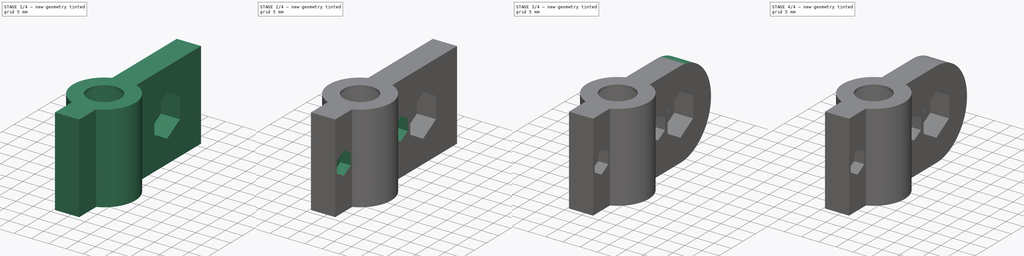
[diagram: build sequence overview — one tinted view per stage of 4, left to right]
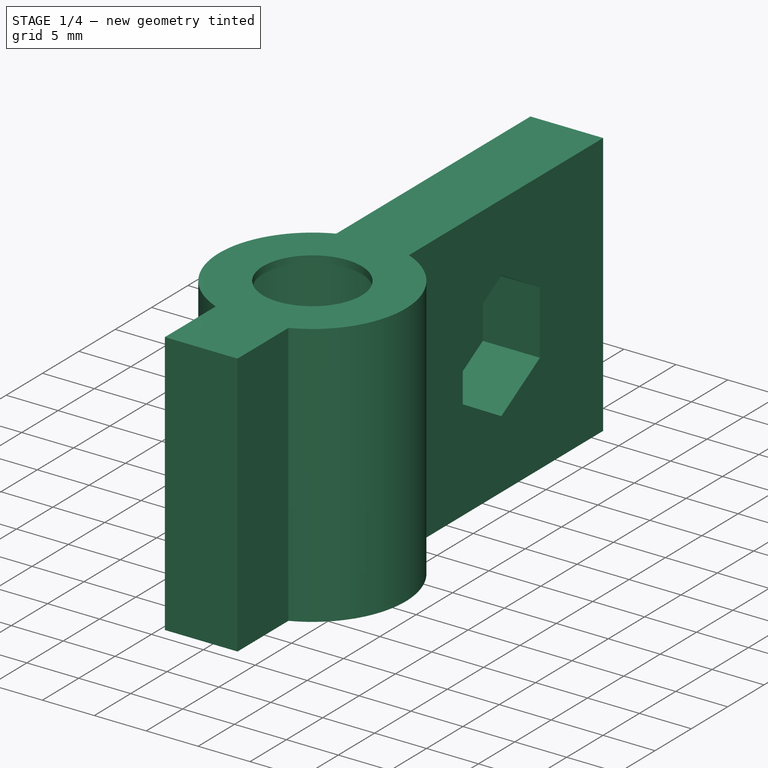
[diagram: stage 1 of 4 — iso view after this stage's code; geometry added in this stage tinted green]
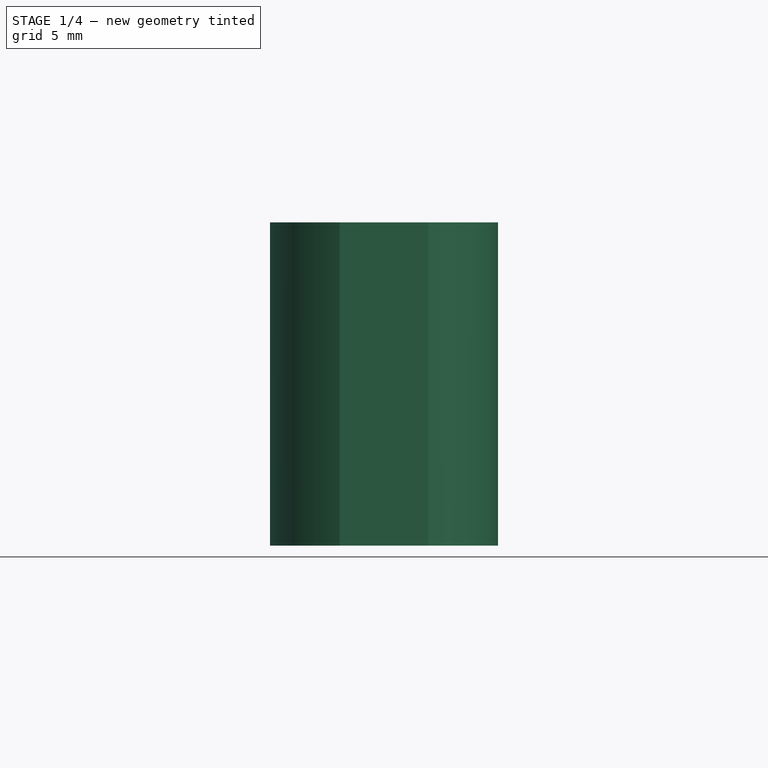
[diagram: stage 1 of 4 — front view after this stage's code; geometry added in this stage tinted green]
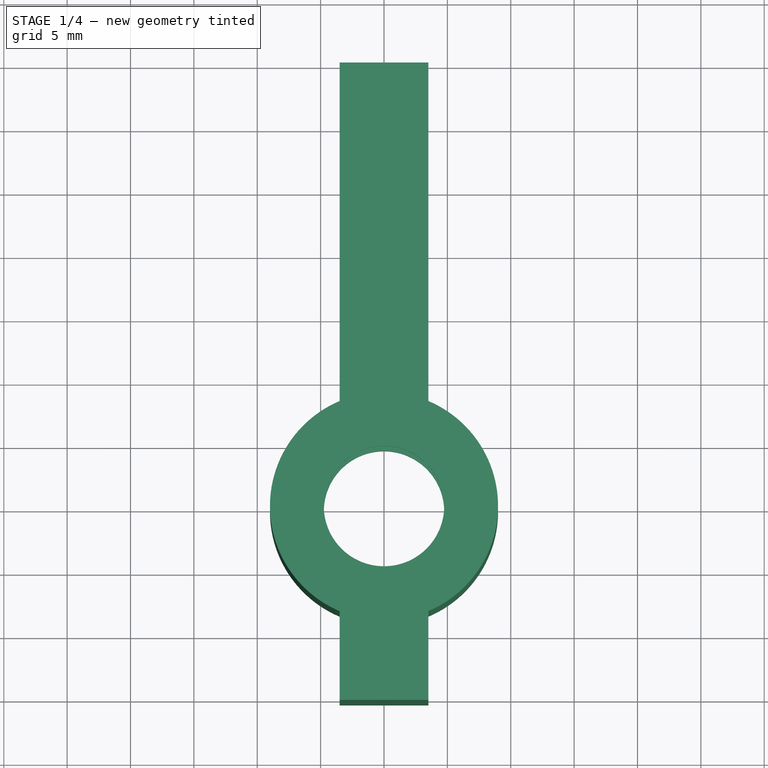
[diagram: stage 1 of 4 — top view after this stage's code; geometry added in this stage tinted green]
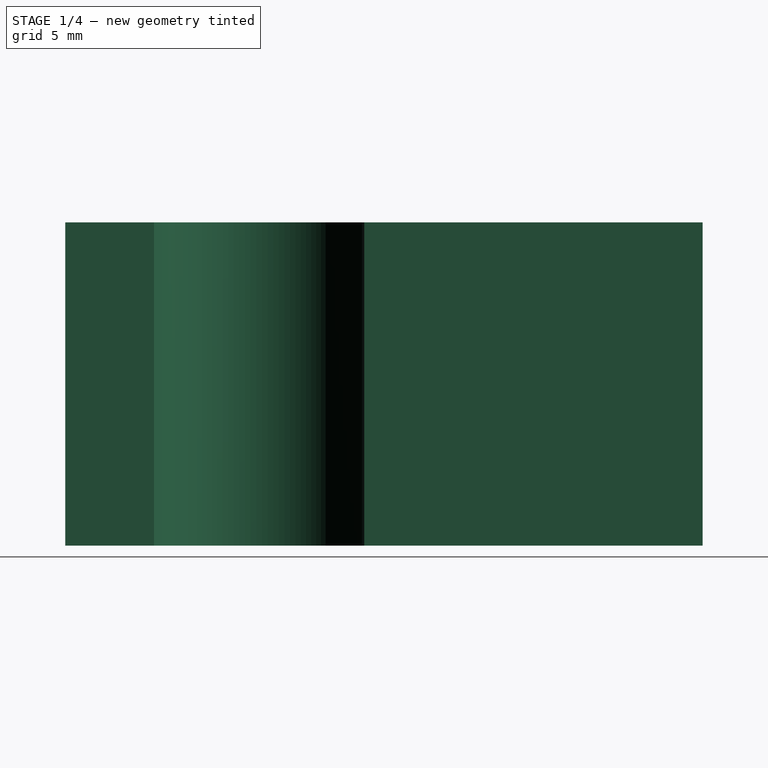
[diagram: stage 1 of 4 — right view after this stage's code; geometry added in this stage tinted green]
FCSTD DOCUMENT  (FreeCAD 0.18R16146 (Git))
Label: stepper-trolley
License: All rights reserved
LicenseURL: http://en.wikipedia.org/wiki/All_rights_reserved
objects: Sketcher::SketchObject×10, PartDesign::Pocket×9, PartDesign::Body×3, PartDesign::FeatureBase×2, PartDesign::Pad×1
note: 35 computed .brp shape members not serialized (recipe doc carries the construction recipe); baked Part::Feature solids carry a one-line shape summary decoded from their .brp

FEATURE [Sketcher::SketchObject] Sketch
  MapMode = 5
  Support = -> [XY_Plane]
  sketch-geometry (9):
    g0: ArcOfCircle CenterX=0 CenterY=0 CenterZ=0 NormalX=0 NormalY=0 NormalZ=1 AngleXU=0 Radius=9 StartAngle=1.97022 EndAngle=4.31296
    g1: LineSegment StartX=-3.5 StartY=35 StartZ=0 EndX=-3.5 EndY=8.29156 EndZ=0
    g2: LineSegment StartX=3.5 StartY=35 StartZ=0 EndX=3.5 EndY=8.29156 EndZ=0
    g3: LineSegment StartX=-3.5 StartY=35 StartZ=0 EndX=3.5 EndY=35 EndZ=0
    g4: Circle CenterX=0 CenterY=0 CenterZ=0 NormalX=0 NormalY=0 NormalZ=1 AngleXU=0 Radius=4.75
    g5: LineSegment StartX=-3.5 StartY=-8.29156 StartZ=0 EndX=-3.5 EndY=-15.2916 EndZ=0
    g6: LineSegment StartX=-3.5 StartY=-15.2916 StartZ=0 EndX=3.5 EndY=-15.2916 EndZ=0
    g7: LineSegment StartX=3.5 StartY=-15.2916 StartZ=0 EndX=3.5 EndY=-8.29156 EndZ=0
    g8: ArcOfCircle CenterX=0 CenterY=0 CenterZ=0 NormalX=0 NormalY=0 NormalZ=1 AngleXU=0 Radius=9 StartAngle=5.11181 EndAngle=7.45456
  constraints (26):
    c: Coincident(g0,g-1)
    c: Diameter(g0) = 18
    c: Vertical(g1)
    c: Vertical(g2)
    c: Coincident(g0,g1)
    c: Coincident(g8,g2)
    c: DistanceY(g0,g8) = 0
    c: DistanceY(g1,g2) = 0
    c: DistanceX(g1,g2) = 7
    c: Coincident(g3,g1)
    c: Coincident(g3,g2)
    c: DistanceY(g0,g1) = 35
    c: Coincident(g4,g0)
    c: Diameter(g4) = 9.5
    c: Coincident(g6,g5)
    c: Horizontal(g6)
    c: Coincident(g7,g6)
    c: Vertical(g7)
    c: Vertical(g5)
    c: Equal(g0,g8)
    c: Coincident(g0,g5)
    c: Coincident(g8,g7)
    c: Coincident(g0,g8)
    c: DistanceX(g0,g0) = 0
    c: DistanceY(g7,g0) = 0
    c: DistanceY(g5,g5) = 7
FEATURE [PartDesign::Pad] Pad
  Length = 25.5
  Length2 = 100
  Profile = -> Sketch
  Type = 0
FEATURE [Sketcher::SketchObject] Sketch001
  AttachmentOffset = pos=(0,0,0.6875) rot=(0,0,1;0rad)
  MapMode = 5
  Placement = pos=(0,0,0.6875) rot=(0,0,1;0rad)
  Support = -> [XY_Plane]
  sketch-geometry (1):
    g0: Circle CenterX=0 CenterY=0 CenterZ=0 NormalX=0 NormalY=0 NormalZ=1 AngleXU=0 Radius=7.75
  constraints (2):
    c: Coincident(g0,g-1)
    c: Diameter(g0) = 15.5
FEATURE [PartDesign::Pocket] Pocket
  BaseFeature = -> Pad
  Length = 24.125
  Length2 = 100
  Profile = -> Sketch001
  Reversed = true
  Type = 0
FEATURE [Sketcher::SketchObject] Sketch002
  MapMode = 5
  Placement = pos=(3.5,0,0) rot=(0.57735,0.57735,0.57735;2.0944rad)
  Support = -> [Pocket]
  sketch-geometry (7):
    g0: LineSegment StartX=21 StartY=18.875 StartZ=0 EndX=15.6956 EndY=15.8125 EndZ=0
    g1: LineSegment StartX=15.6956 StartY=15.8125 StartZ=0 EndX=15.6956 EndY=9.6875 EndZ=0
    g2: LineSegment StartX=15.6956 StartY=9.6875 StartZ=0 EndX=21 EndY=6.625 EndZ=0
    g3: LineSegment StartX=21 StartY=6.625 StartZ=0 EndX=26.3044 EndY=9.6875 EndZ=0
    g4: LineSegment StartX=26.3044 StartY=9.6875 StartZ=0 EndX=26.3044 EndY=15.8125 EndZ=0
    g5: LineSegment StartX=26.3044 StartY=15.8125 StartZ=0 EndX=21 EndY=18.875 EndZ=0
    g6: Circle [constr] CenterX=21 CenterY=12.75 CenterZ=0 NormalX=0 NormalY=0 NormalZ=1 AngleXU=0 Radius=6.125
  constraints (17):
    c: Coincident(g0,g1)
    c: Coincident(g1,g2)
    c: Coincident(g2,g3)
    c: Coincident(g3,g4)
    c: Coincident(g4,g5)
    c: Coincident(g5,g0)
    c: Equal(g0, g1-g5) x5
    c: PointOnObject(g0,g6)
    c: PointOnObject(g1,g6)
    c: PointOnObject(g2,g6)
    c: PointOnObject(g3,g6)
    c: PointOnObject(g4,g6)
    c: PointOnObject(g5,g6)
    c: Vertical(g1)
    c: DistanceY(g-1,g6) = 12.75
    c: Diameter(g6) = 12.25
    c: DistanceX(g-1,g6) = 21
FEATURE [PartDesign::Pocket] Pocket001
  BaseFeature = -> Pocket
  Length = 5.5
  Length2 = 100
  Profile = -> Sketch002
  Type = 0
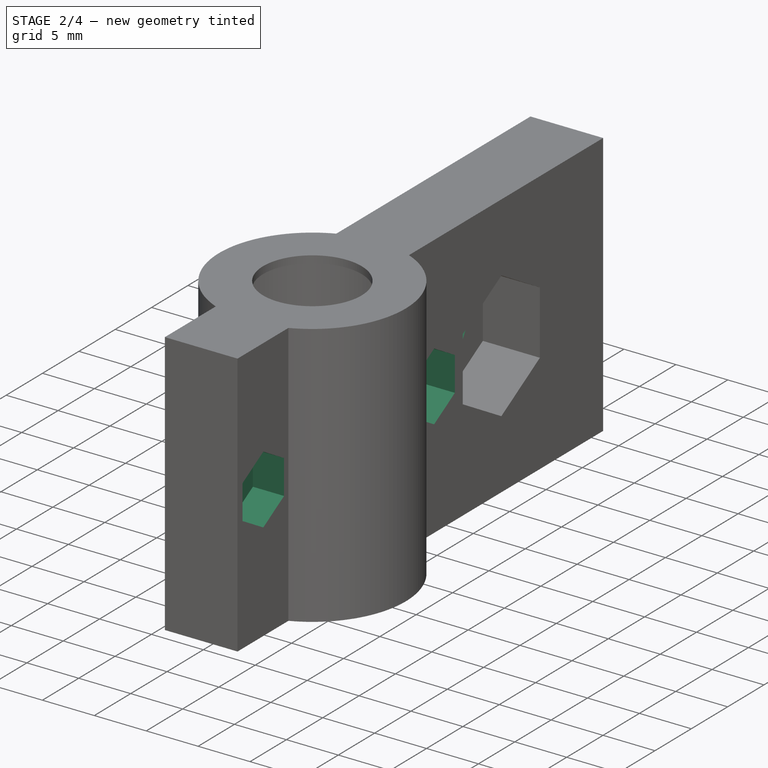
[diagram: stage 2 of 4 — iso view after this stage's code; geometry added in this stage tinted green]
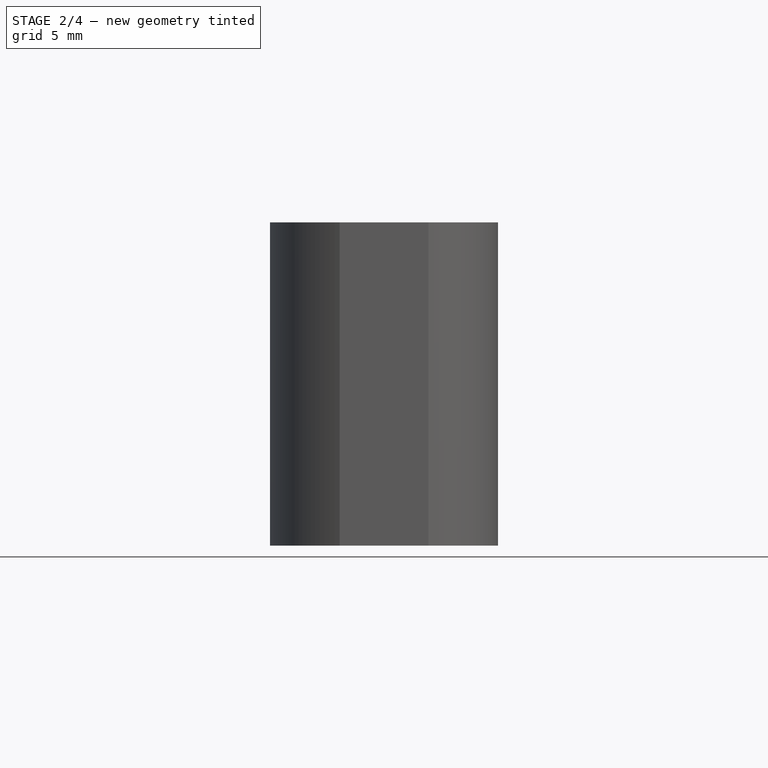
[diagram: stage 2 of 4 — front view after this stage's code; geometry added in this stage tinted green]
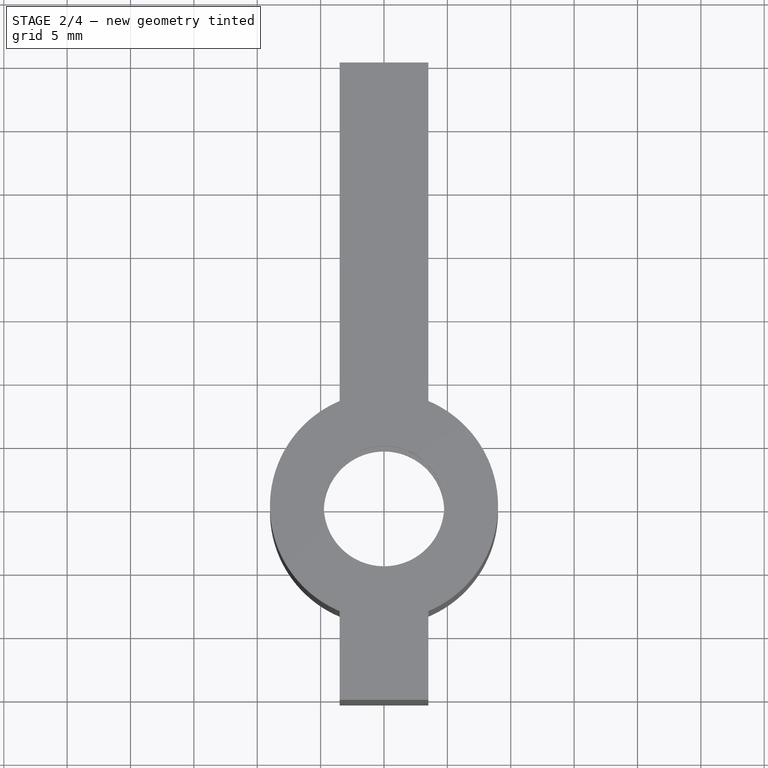
[diagram: stage 2 of 4 — top view after this stage's code; geometry added in this stage tinted green]
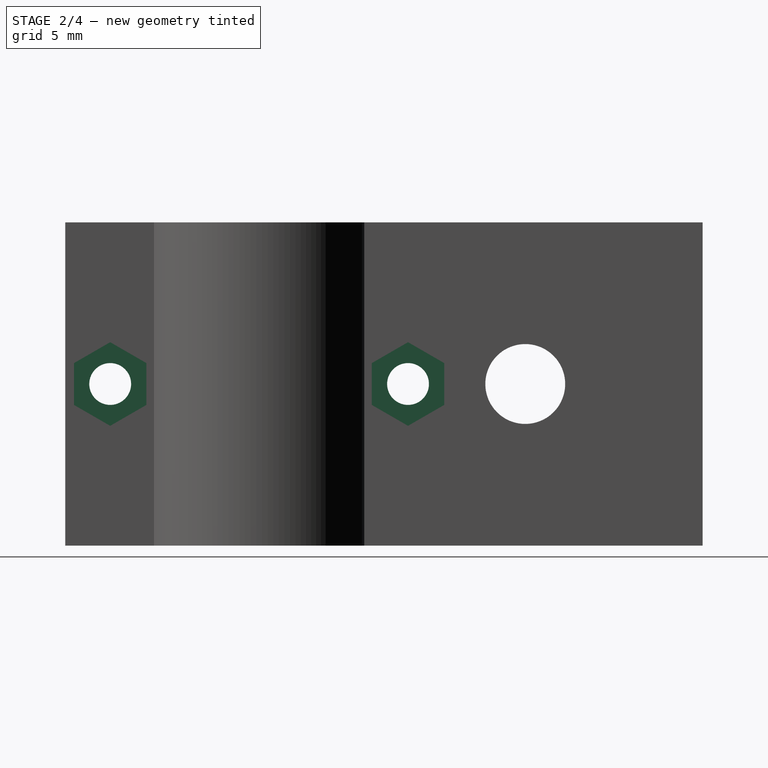
[diagram: stage 2 of 4 — right view after this stage's code; geometry added in this stage tinted green]
FEATURE [Sketcher::SketchObject] Sketch003
  MapMode = 5
  Placement = pos=(0,0,0) rot=(0.57735,0.57735,0.57735;2.0944rad)
  Support = -> [YZ_Plane]
  sketch-geometry (1):
    g0: Circle CenterX=21 CenterY=12.75 CenterZ=0 NormalX=0 NormalY=0 NormalZ=1 AngleXU=0 Radius=3.15
  constraints (3):
    c: Diameter(g0) = 6.3
    c: DistanceX(g-1,g0) = 21
    c: DistanceY(g-1,g0) = 12.75
FEATURE [PartDesign::Pocket] Pocket002
  BaseFeature = -> Pocket001
  Length = 5
  Length2 = 100
  Profile = -> Sketch003
  Type = 1
FEATURE [Sketcher::SketchObject] Sketch006
  AttachmentOffset = pos=(0,0,3.5) rot=(0,0,1;0rad)
  MapMode = 5
  Placement = pos=(3.5,-8e-16,8e-16) rot=(0.57735,0.57735,0.57735;2.0944rad)
  Support = -> [YZ_Plane]
  sketch-geometry (14):
    g0: LineSegment StartX=-8.89212 StartY=11.1 StartZ=0 EndX=-8.89212 EndY=14.4 EndZ=0
    g1: LineSegment StartX=-8.89212 StartY=14.4 StartZ=0 EndX=-11.75 EndY=16.05 EndZ=0
    g2: LineSegment StartX=-11.75 StartY=16.05 StartZ=0 EndX=-14.6079 EndY=14.4 EndZ=0
    g3: LineSegment StartX=-14.6079 StartY=14.4 StartZ=0 EndX=-14.6079 EndY=11.1 EndZ=0
    g4: LineSegment StartX=-14.6079 StartY=11.1 StartZ=0 EndX=-11.75 EndY=9.45 EndZ=0
    g5: LineSegment StartX=-11.75 StartY=9.45 StartZ=0 EndX=-8.89212 EndY=11.1 EndZ=0
    g6: Circle [constr] CenterX=-11.75 CenterY=12.75 CenterZ=0 NormalX=0 NormalY=0 NormalZ=1 AngleXU=0 Radius=3.3
    g7: LineSegment StartX=14.6079 StartY=11.1 StartZ=0 EndX=14.6079 EndY=14.4 EndZ=0
    g8: LineSegment StartX=14.6079 StartY=14.4 StartZ=0 EndX=11.75 EndY=16.05 EndZ=0
    g9: LineSegment StartX=11.75 StartY=16.05 StartZ=0 EndX=8.89212 EndY=14.4 EndZ=0
    g10: LineSegment StartX=8.89212 StartY=14.4 StartZ=0 EndX=8.89212 EndY=11.1 EndZ=0
    g11: LineSegment StartX=8.89212 StartY=11.1 StartZ=0 EndX=11.75 EndY=9.45 EndZ=0
    g12: LineSegment StartX=11.75 StartY=9.45 StartZ=0 EndX=14.6079 EndY=11.1 EndZ=0
    g13: Circle [constr] CenterX=11.75 CenterY=12.75 CenterZ=0 NormalX=0 NormalY=0 NormalZ=1 AngleXU=0 Radius=3.3
  constraints (34):
    c: Coincident(g0,g1)
    c: Coincident(g1,g2)
    c: Coincident(g2,g3)
    c: Coincident(g3,g4)
    c: Coincident(g4,g5)
    c: Coincident(g5,g0)
    c: Equal(g0, g1-g5) x5
    c: PointOnObject(g0,g6)
    c: PointOnObject(g1,g6)
    c: PointOnObject(g2,g6)
    c: PointOnObject(g3,g6)
    c: PointOnObject(g4,g6)
    c: PointOnObject(g5,g6)
    c: Coincident(g7,g8)
    c: Coincident(g8,g9)
    c: Coincident(g9,g10)
    c: Coincident(g10,g11)
    c: Coincident(g11,g12)
    c: Coincident(g12,g7)
    c: Equal(g7, g8-g12) x5
    c: PointOnObject(g7,g13)
    c: PointOnObject(g8,g13)
    c: PointOnObject(g9,g13)
    c: PointOnObject(g10,g13)
    c: PointOnObject(g11,g13)
    c: PointOnObject(g12,g13)
    c: DistanceY(g13,g6) = 0
    c: DistanceX(g6,g-1) = 11.75
    c: DistanceY(g-1,g13) = 12.75
    c: Vertical(g10)
    c: DistanceX(g-1,g13) = 11.75
    c: Diameter(g6) = 6.6
    c: Vertical(g3)
    c: Equal(g13,g6)
FEATURE [PartDesign::Pocket] Pocket003
  BaseFeature = -> Pocket002
  Length = 3
  Length2 = 100
  Profile = -> Sketch006
  Type = 0
FEATURE [Sketcher::SketchObject] Sketch007
  AttachmentOffset = pos=(0,0,-30) rot=(0,0,1;0rad)
  MapMode = 5
  Placement = pos=(-30,6.7e-15,-6.7e-15) rot=(0.57735,0.57735,0.57735;2.0944rad)
  Support = -> [YZ_Plane]
  sketch-geometry (2):
    g0: Circle CenterX=-11.75 CenterY=12.75 CenterZ=0 NormalX=0 NormalY=0 NormalZ=1 AngleXU=0 Radius=1.65
    g1: Circle CenterX=11.75 CenterY=12.75 CenterZ=0 NormalX=0 NormalY=0 NormalZ=1 AngleXU=0 Radius=1.65
  constraints (6):
    c: DistanceY(g1,g0) = 0
    c: DistanceX(g0,g-1) = 11.75
    c: DistanceX(g-1,g1) = 11.75
    c: DistanceY(g-1,g1) = 12.75
    c: Diameter(g0) = 3.3
    c: Equal(g1,g0)
FEATURE [PartDesign::Pocket] Pocket004
  BaseFeature = -> Pocket003
  Length = 5
  Length2 = 100
  Profile = -> Sketch007
  Reversed = true
  Type = 1
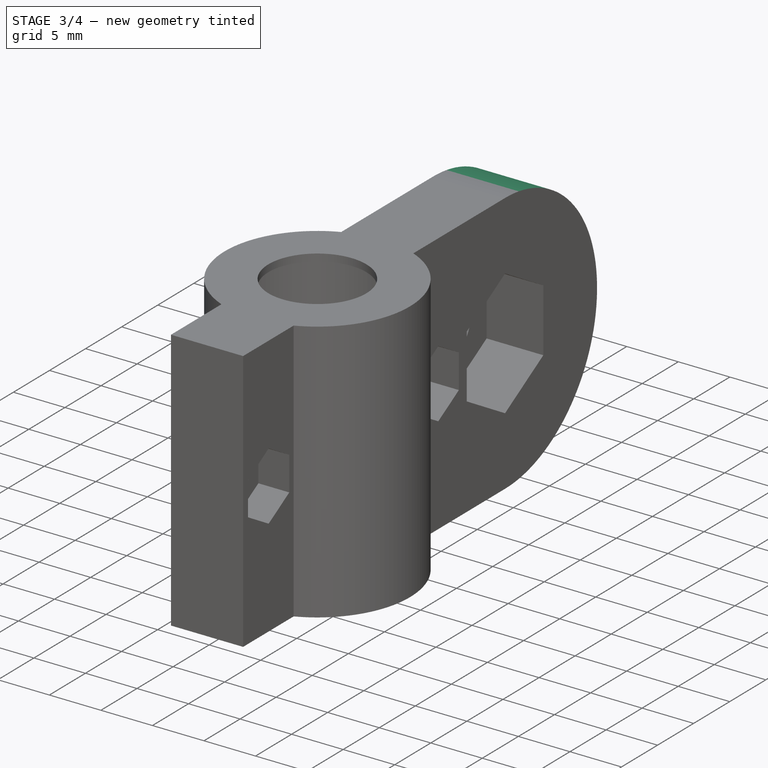
[diagram: stage 3 of 4 — iso view after this stage's code; geometry added in this stage tinted green]
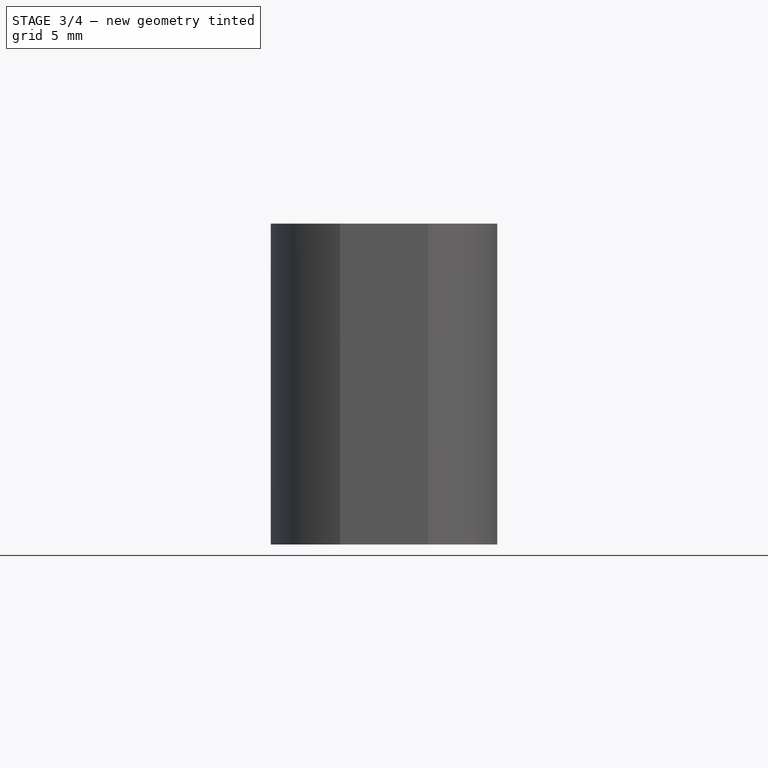
[diagram: stage 3 of 4 — front view after this stage's code; geometry added in this stage tinted green]
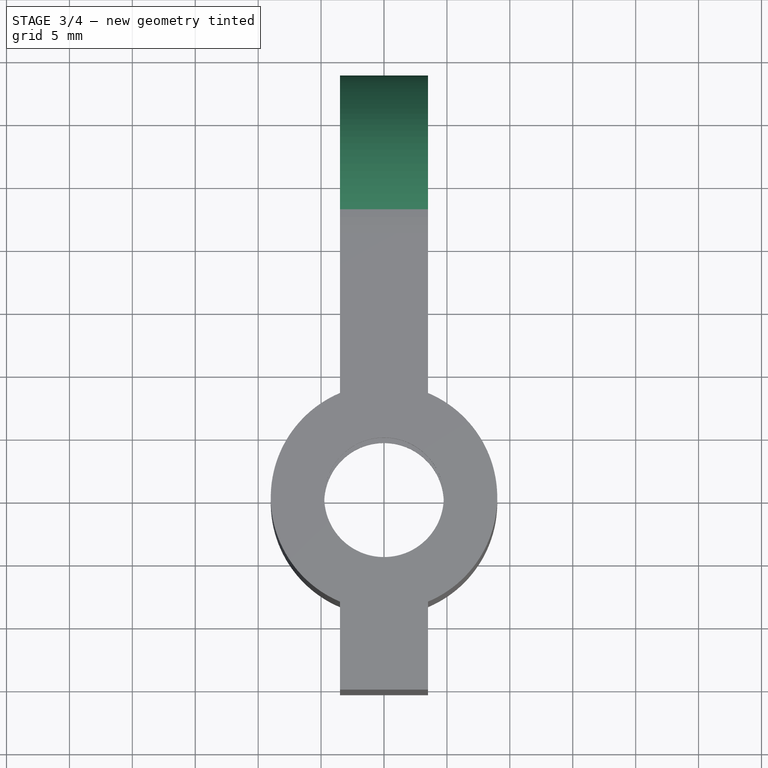
[diagram: stage 3 of 4 — top view after this stage's code; geometry added in this stage tinted green]
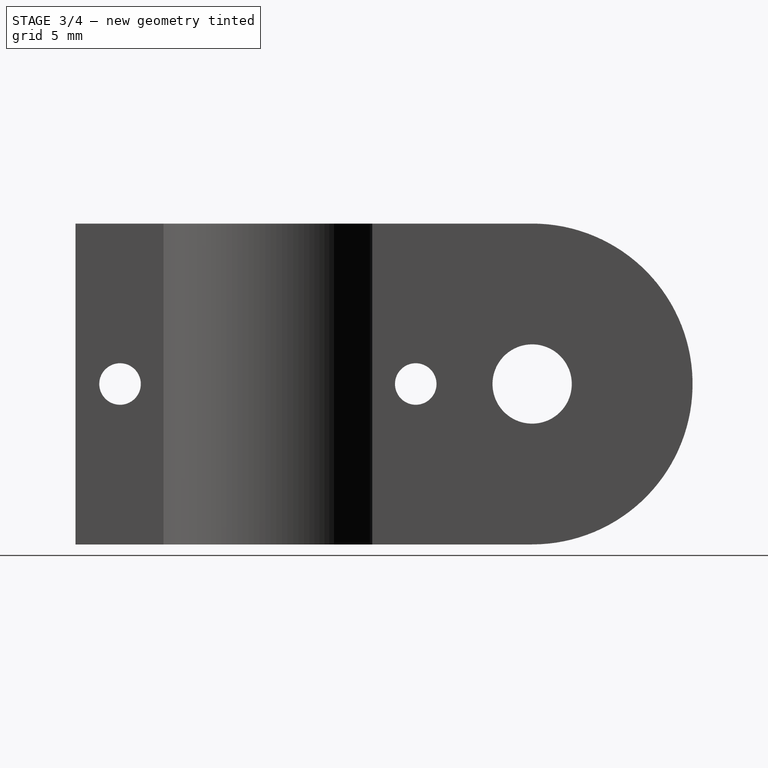
[diagram: stage 3 of 4 — right view after this stage's code; geometry added in this stage tinted green]
FEATURE [Sketcher::SketchObject] Sketch008
  AttachmentOffset = pos=(0,0,-3.5) rot=(0,0,1;0rad)
  MapMode = 5
  Placement = pos=(-3.5,8e-16,-8e-16) rot=(0.57735,0.57735,0.57735;2.0944rad)
  Support = -> [YZ_Plane]
  sketch-geometry (2):
    g0: Circle CenterX=-11.75 CenterY=12.75 CenterZ=0 NormalX=0 NormalY=0 NormalZ=1 AngleXU=0 Radius=3
    g1: Circle CenterX=11.75 CenterY=12.75 CenterZ=0 NormalX=0 NormalY=0 NormalZ=1 AngleXU=0 Radius=3
  constraints (6):
    c: DistanceY(g1,g0) = 0
    c: Equal(g1,g0)
    c: Diameter(g0) = 6
    c: DistanceY(g-1,g0) = 12.75
    c: DistanceX(g0,g-1) = 11.75
    c: DistanceX(g-1,g1) = 11.75
FEATURE [PartDesign::Pocket] Pocket005
  BaseFeature = -> Pocket004
  Length = 3
  Length2 = 100
  Profile = -> Sketch008
  Reversed = true
  Type = 0
FEATURE [Sketcher::SketchObject] Sketch009
  AttachmentOffset = pos=(0,0,50) rot=(0,0,1;0rad)
  MapMode = 5
  Placement = pos=(50,-1.11e-14,1.11e-14) rot=(0.57735,0.57735,0.57735;2.0944rad)
  Support = -> [YZ_Plane]
  sketch-geometry (4):
    g0: ArcOfCircle CenterX=21 CenterY=12.75 CenterZ=0 NormalX=0 NormalY=0 NormalZ=1 AngleXU=0 Radius=12.75 StartAngle=4.71239 EndAngle=7.85398
    g1: LineSegment StartX=21 StartY=0 StartZ=0 EndX=41 EndY=0 EndZ=0
    g2: LineSegment StartX=21 StartY=25.5 StartZ=0 EndX=41 EndY=25.5 EndZ=0
    g3: LineSegment StartX=41 StartY=25.5 StartZ=0 EndX=41 EndY=0 EndZ=0
  constraints (13):
    c: DistanceY(g-1,g0) = 12.75
    c: DistanceX(g-1,g0) = 21
    c: PointOnObject(g1,g-1)
    c: Horizontal(g1)
    c: Horizontal(g2)
    c: Vertical(g3)
    c: Coincident(g0,g1)
    c: Coincident(g0,g2)
    c: Coincident(g2,g3)
    c: Coincident(g1,g3)
    c: DistanceX(g2,g2) = 20
    c: DistanceX(g0,g0) = 0
    c: DistanceX(g0,g0) = 0
FEATURE [PartDesign::Pocket] Pocket006
  BaseFeature = -> Pocket005
  Length = 5
  Length2 = 100
  Profile = -> Sketch009
  Type = 1
FEATURE [PartDesign::FeatureBase] Clone001
  BaseFeature = -> Body
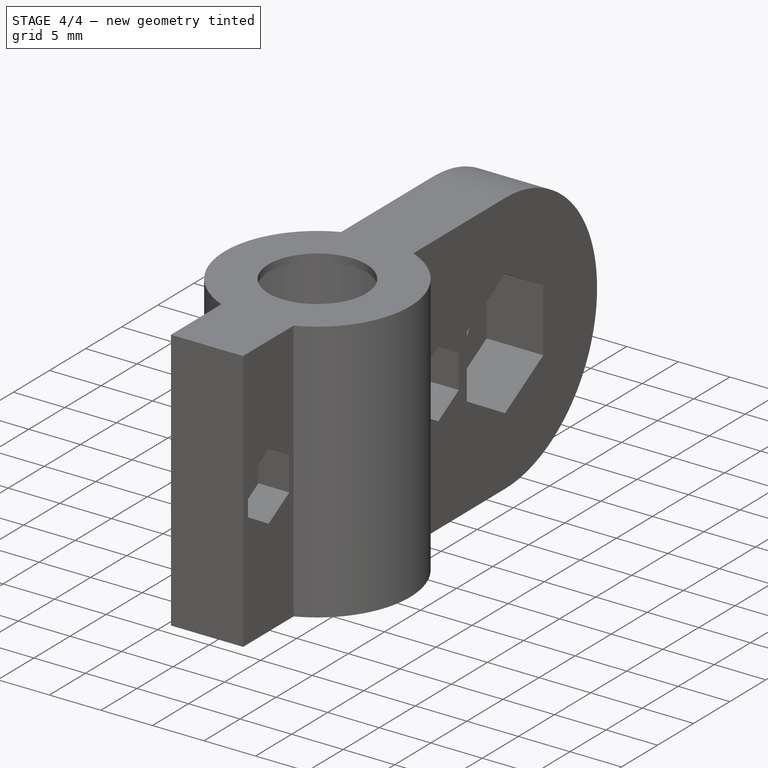
[diagram: stage 4 of 4 — iso view after this stage's code; geometry added in this stage tinted green]
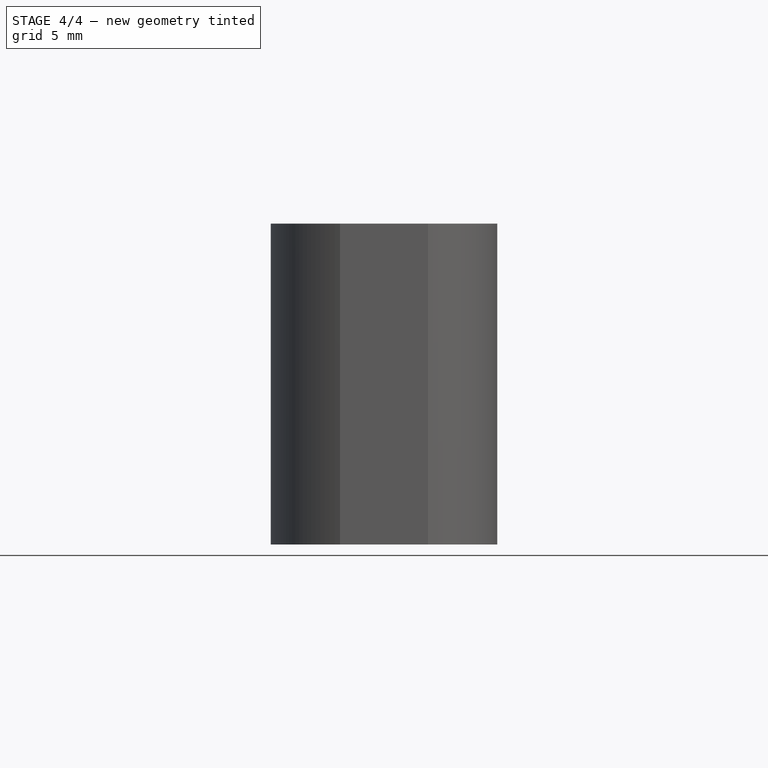
[diagram: stage 4 of 4 — front view after this stage's code; geometry added in this stage tinted green]
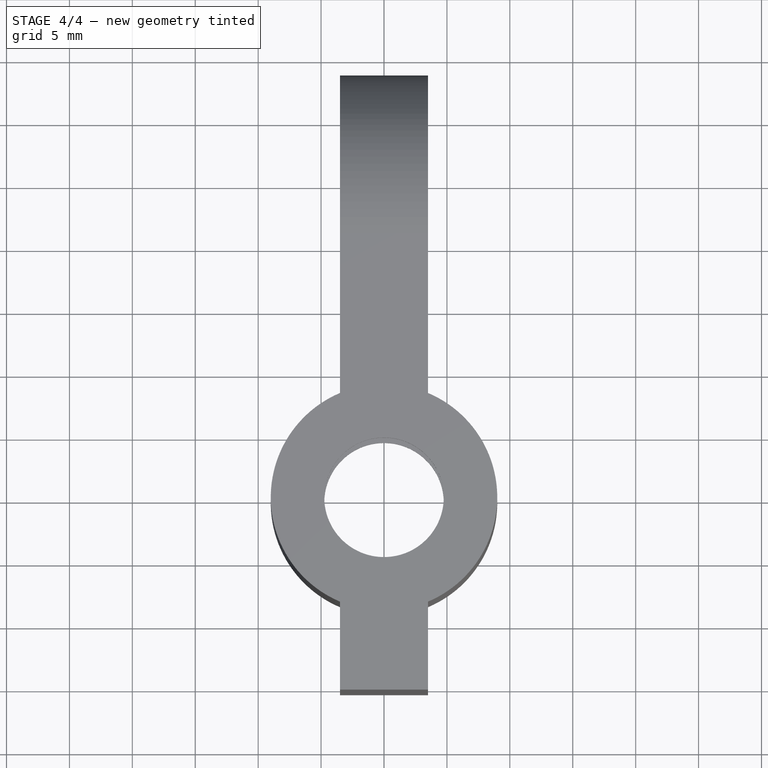
[diagram: stage 4 of 4 — top view after this stage's code; geometry added in this stage tinted green]
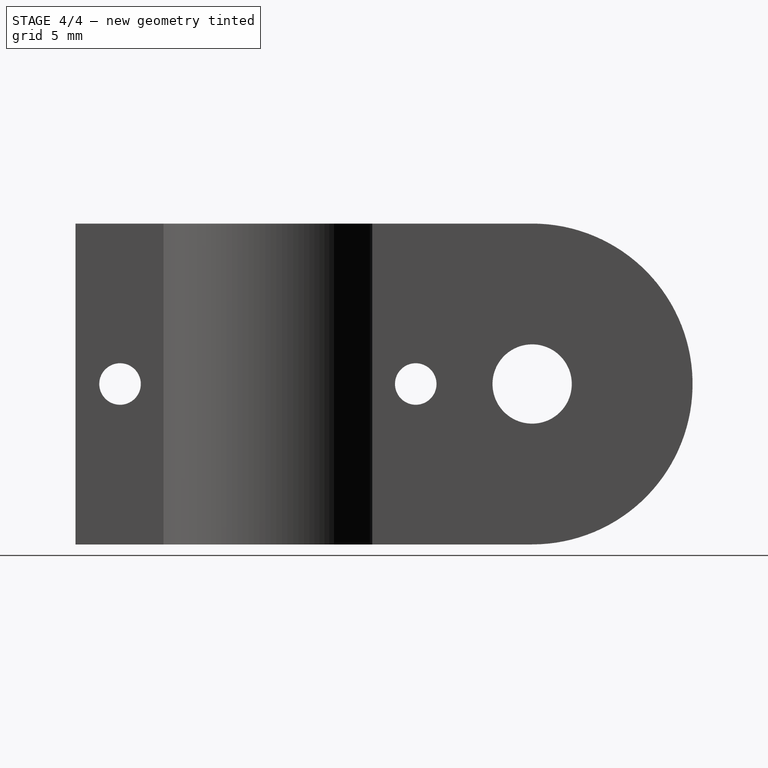
[diagram: stage 4 of 4 — right view after this stage's code; geometry added in this stage tinted green]
FEATURE [PartDesign::Body] Body  label="stepper-trolley"
  Group = -> [Sketch,Pad,Sketch001,Pocket,Sketch002,Pocket001,Sketch003,Pocket002,Sketch006,Pocket003,Sketch007,Pocket004,Sketch008,Pocket005,Sketch009,Pocket006]
  Origin = -> Origin
  Tip = -> Pocket006
FEATURE [PartDesign::FeatureBase] Clone
  BaseFeature = -> Body
FEATURE [Sketcher::SketchObject] Sketch010
  MapMode = 5
  Support = -> [XY_Plane001]
  sketch-geometry (4):
    g0: LineSegment StartX=0 StartY=43.8881 StartZ=0 EndX=13.333 EndY=43.8881 EndZ=0
    g1: LineSegment StartX=13.333 StartY=43.8881 StartZ=0 EndX=13.333 EndY=-23.4264 EndZ=0
    g2: LineSegment StartX=13.333 StartY=-23.4264 StartZ=0 EndX=0 EndY=-23.4264 EndZ=0
    g3: LineSegment StartX=0 StartY=-23.4264 StartZ=0 EndX=0 EndY=43.8881 EndZ=0
  constraints (9):
    c: Coincident(g0,g1)
    c: Coincident(g1,g2)
    c: Coincident(g2,g3)
    c: Coincident(g3,g0)
    c: Horizontal(g0)
    c: Horizontal(g2)
    c: Vertical(g1)
    c: Vertical(g3)
    c: PointOnObject(g0,g-2)
FEATURE [PartDesign::Pocket] Pocket007
  BaseFeature = -> Clone
  Length = 5
  Length2 = 100
  Profile = -> Sketch010
  Reversed = true
  Type = 1
FEATURE [PartDesign::Body] Body001  label="stepper-trolley-top"
  Group = -> [Clone,Sketch010,Pocket007]
  Origin = -> Origin001
  Tip = -> Pocket007
FEATURE [Sketcher::SketchObject] Sketch011
  MapMode = 5
  Support = -> [XY_Plane002]
  sketch-geometry (4):
    g0: LineSegment StartX=0 StartY=35.6689 StartZ=0 EndX=-23.8173 EndY=35.6689 EndZ=0
    g1: LineSegment StartX=-23.8173 StartY=35.6689 StartZ=0 EndX=-23.8173 EndY=-20.32 EndZ=0
    g2: LineSegment StartX=-23.8173 StartY=-20.32 StartZ=0 EndX=0 EndY=-20.32 EndZ=0
    g3: LineSegment StartX=0 StartY=-20.32 StartZ=0 EndX=0 EndY=35.6689 EndZ=0
  constraints (9):
    c: Coincident(g0,g1)
    c: Coincident(g1,g2)
    c: Coincident(g2,g3)
    c: Coincident(g3,g0)
    c: Horizontal(g0)
    c: Horizontal(g2)
    c: Vertical(g1)
    c: Vertical(g3)
    c: PointOnObject(g0,g-2)
FEATURE [PartDesign::Pocket] Pocket008
  BaseFeature = -> Clone001
  Length = 5
  Length2 = 100
  Profile = -> Sketch011
  Reversed = true
  Type = 1
FEATURE [PartDesign::Body] Body002  label="stepper-trolley-bottom"
  Group = -> [Clone001,Sketch011,Pocket008]
  Origin = -> Origin002
  Tip = -> Pocket008
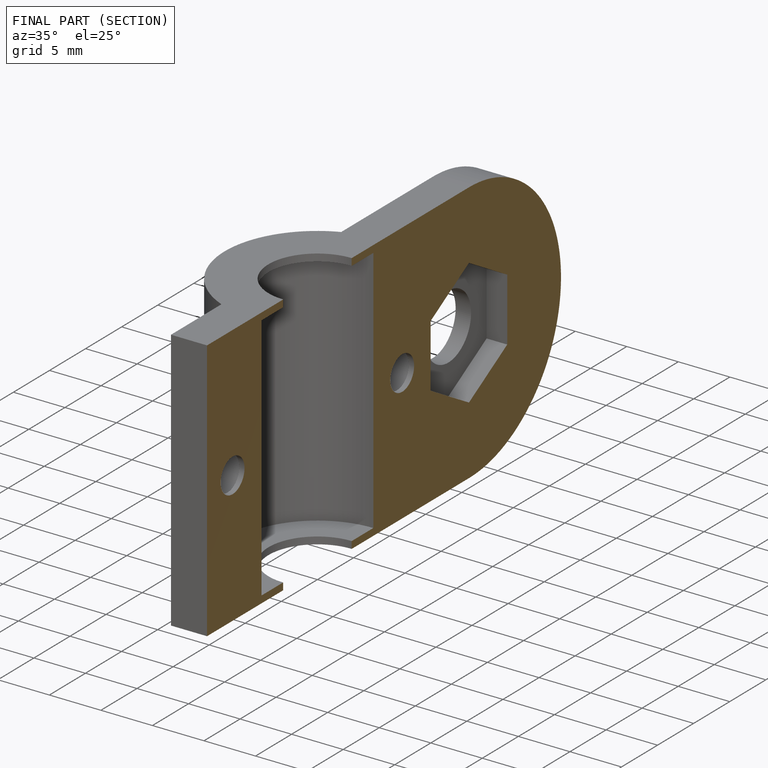
[diagram: finished part — half-section view (interior)]
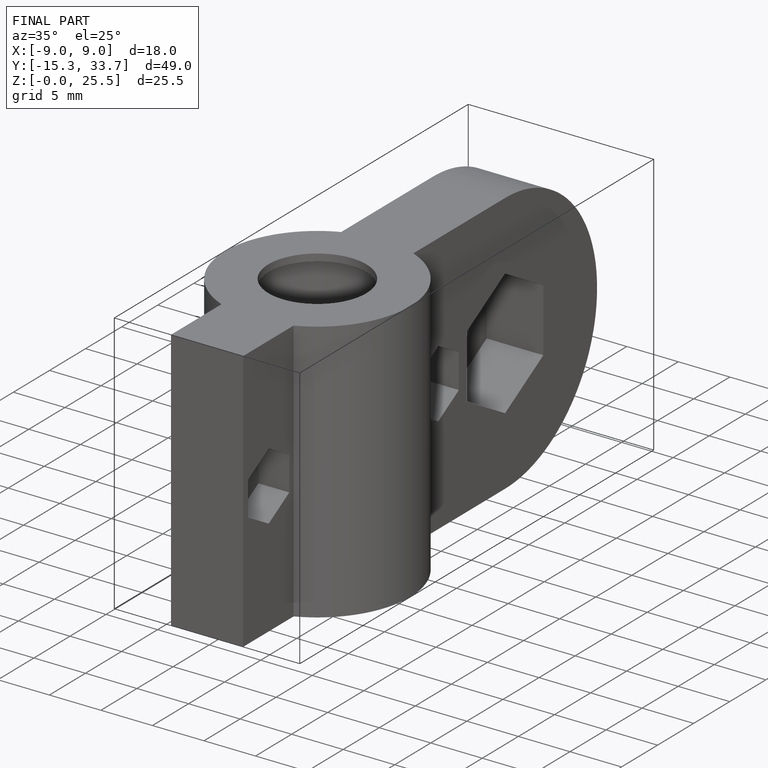
[diagram: finished part — iso view with bounding-box wireframe]
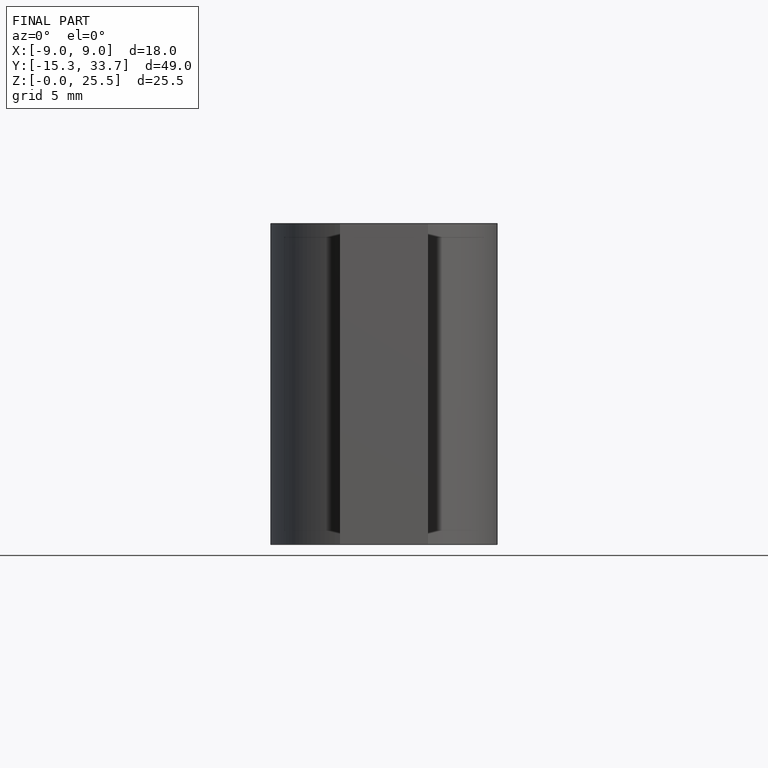
[diagram: finished part — front view with bounding-box wireframe]
